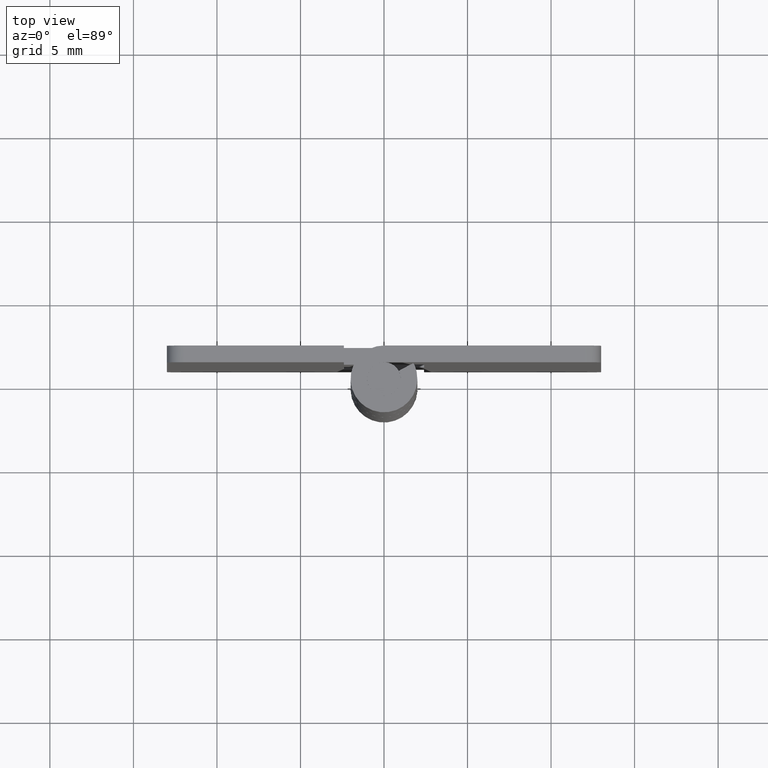
[diagram: clean part render]
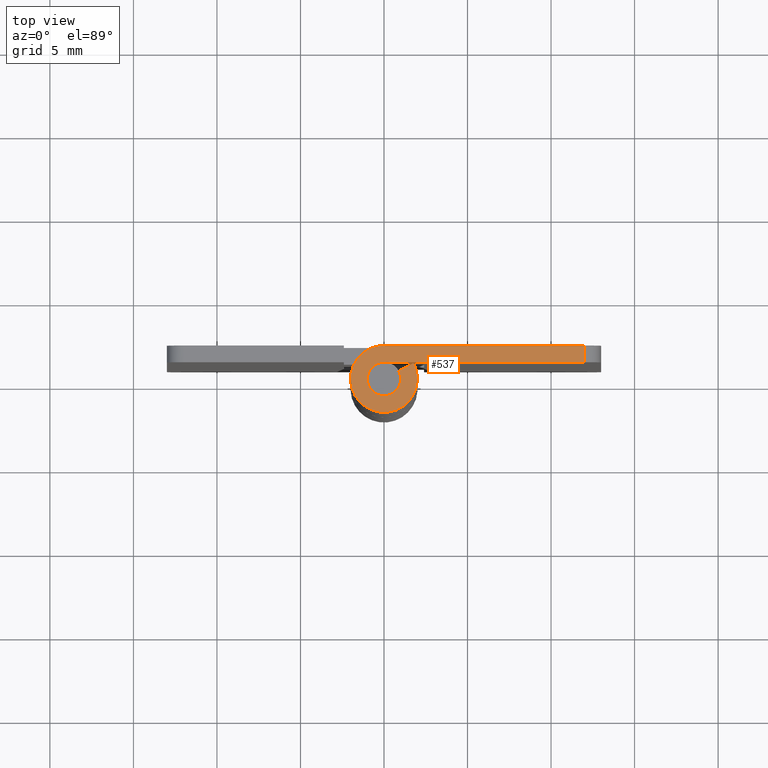
[diagram: same view with one face highlighted and labeled with its STEP entity id]
A machine part, top view. The second image highlights one B-rep face of the part: STEP entity #537.
In plain terms, the highlighted face is a freeform B-spline surface patch.
Its self-contained STEP definition (entity closure, byte-faithful):
#58=CARTESIAN_POINT('',(12.0,2.0,35.0));
#59=VERTEX_POINT('',#58);
#75=CARTESIAN_POINT('',(12.0,1.0,35.0));
#76=VERTEX_POINT('',#75);
#77=CARTESIAN_POINT('',(12.0,1.0,35.0));
#78=CARTESIAN_POINT('',(12.0,2.0,35.0));
#79=QUASI_UNIFORM_CURVE('',1,(#77,#78),.UNSPECIFIED.,.F.,.U.);
#80=EDGE_CURVE('',#76,#59,#79,.T.);
#468=CARTESIAN_POINT('',(-2.699222573380015,2.199785243744074,35.0));
#469=CARTESIAN_POINT('',(12.699296666193280,2.199785243744074,35.0));
#470=CARTESIAN_POINT('',(-2.699222573380015,-2.199490085684746,35.0));
#471=CARTESIAN_POINT('',(12.699296666193280,-2.199490085684746,35.0));
#472=B_SPLINE_SURFACE_WITH_KNOTS('',1,1,((#468,#470),(#469,#471)),.UNSPECIFIED.,.F.,.F.,.U.,(2,2),(2,2),(0.0,15.398519239573289),(0.0,4.399275329428820),.UNSPECIFIED.);
#473=CARTESIAN_POINT('',(0.0,1.0,35.0));
#474=VERTEX_POINT('',#473);
#475=CARTESIAN_POINT('',(12.0,1.0,35.0));
#476=CARTESIAN_POINT('',(0.0,1.0,35.0));
#477=QUASI_UNIFORM_CURVE('',1,(#475,#476),.UNSPECIFIED.,.F.,.U.);
#478=EDGE_CURVE('',#76,#474,#477,.T.);
#479=ORIENTED_EDGE('',*,*,#478,.F.);
#480=ORIENTED_EDGE('',*,*,#80,.T.);
#481=CARTESIAN_POINT('',(-3.673819E-016,2.0,35.0));
#482=VERTEX_POINT('',#481);
#483=CARTESIAN_POINT('',(-3.673819E-016,2.0,35.0));
#484=CARTESIAN_POINT('',(12.0,2.0,35.0));
#485=QUASI_UNIFORM_CURVE('',1,(#483,#484),.UNSPECIFIED.,.F.,.U.);
#486=EDGE_CURVE('',#482,#59,#485,.T.);
#487=ORIENTED_EDGE('',*,*,#486,.F.);
#488=CARTESIAN_POINT('',(1.759971590679805,0.950000000000000,35.0));
#489=VERTEX_POINT('',#488);
#490=CARTESIAN_POINT('',(0.0,2.0,35.0));
#491=CARTESIAN_POINT('',(-1.523311426391113,2.000000000000000,34.999999999999993));
#492=CARTESIAN_POINT('',(-1.928096575312494,0.531454227820452,35.0));
#493=CARTESIAN_POINT('',(-2.332881724233873,-0.937091544359094,34.999999999999993));
#494=CARTESIAN_POINT('',(-1.024695076595961,-1.717556403731766,35.0));
#495=CARTESIAN_POINT('',(0.283491571041951,-2.498021263104438,34.999999999999993));
#496=CARTESIAN_POINT('',(1.383518044628767,-1.444256840103794,35.0));
#497=CARTESIAN_POINT('',(2.483544518215582,-0.390492417103149,34.999999999999993));
#498=CARTESIAN_POINT('',(1.759971590679806,0.949999999999997,35.0));
#506=(BOUNDED_CURVE()B_SPLINE_CURVE(2,(#490,#491,#492,#493,#494,#495,#496,#497,#498),.UNSPECIFIED.,.F.,.U.)B_SPLINE_CURVE_WITH_KNOTS((3,2,2,2,3),(0.0,0.250000000000000,0.500000000000000,0.750000000000000,1.0),.UNSPECIFIED.)CURVE()GEOMETRIC_REPRESENTATION_ITEM()RATIONAL_B_SPLINE_CURVE((1.0,0.795527219493534,1.0,0.795527219493534,1.0,0.795527219493534,1.0,0.795527219493534,1.0))REPRESENTATION_ITEM(''));
#507=EDGE_CURVE('',#482,#489,#506,.T.);
#508=ORIENTED_EDGE('',*,*,#507,.T.);
#509=CARTESIAN_POINT('',(0.879985795339902,0.475000000000000,35.0));
#510=VERTEX_POINT('',#509);
#511=CARTESIAN_POINT('',(0.879985795339902,0.475000000000000,35.0));
#512=CARTESIAN_POINT('',(1.759971590679805,0.950000000000000,35.0));
#513=QUASI_UNIFORM_CURVE('',1,(#511,#512),.UNSPECIFIED.,.F.,.U.);
#514=EDGE_CURVE('',#510,#489,#513,.T.);
#515=ORIENTED_EDGE('',*,*,#514,.F.);
#516=CARTESIAN_POINT('',(0.0,1.0,35.0));
#517=CARTESIAN_POINT('',(-0.761655713195556,1.0,34.999999999999993));
#518=CARTESIAN_POINT('',(-0.964048287656247,0.265727113910226,35.0));
#519=CARTESIAN_POINT('',(-1.166440862116937,-0.468545772179547,34.999999999999993));
#520=CARTESIAN_POINT('',(-0.512347538297981,-0.858778201865883,35.0));
#521=CARTESIAN_POINT('',(0.141745785520976,-1.249010631552219,34.999999999999993));
#522=CARTESIAN_POINT('',(0.691759022314383,-0.722128420051897,35.0));
#523=CARTESIAN_POINT('',(1.241772259107791,-0.195246208551574,34.999999999999993));
#524=CARTESIAN_POINT('',(0.879985795339903,0.474999999999999,35.0));
#532=(BOUNDED_CURVE()B_SPLINE_CURVE(2,(#516,#517,#518,#519,#520,#521,#522,#523,#524),.UNSPECIFIED.,.F.,.U.)B_SPLINE_CURVE_WITH_KNOTS((3,2,2,2,3),(0.0,0.250000000000000,0.500000000000000,0.750000000000000,1.0),.UNSPECIFIED.)CURVE()GEOMETRIC_REPRESENTATION_ITEM()RATIONAL_B_SPLINE_CURVE((1.0,0.795527219493534,1.0,0.795527219493534,1.0,0.795527219493534,1.0,0.795527219493534,1.0))REPRESENTATION_ITEM(''));
#533=EDGE_CURVE('',#474,#510,#532,.T.);
#534=ORIENTED_EDGE('',*,*,#533,.F.);
#535=EDGE_LOOP('',(#479,#480,#487,#508,#515,#534));
#536=FACE_OUTER_BOUND('',#535,.T.);
#537=ADVANCED_FACE('',(#536),#472,.F.);